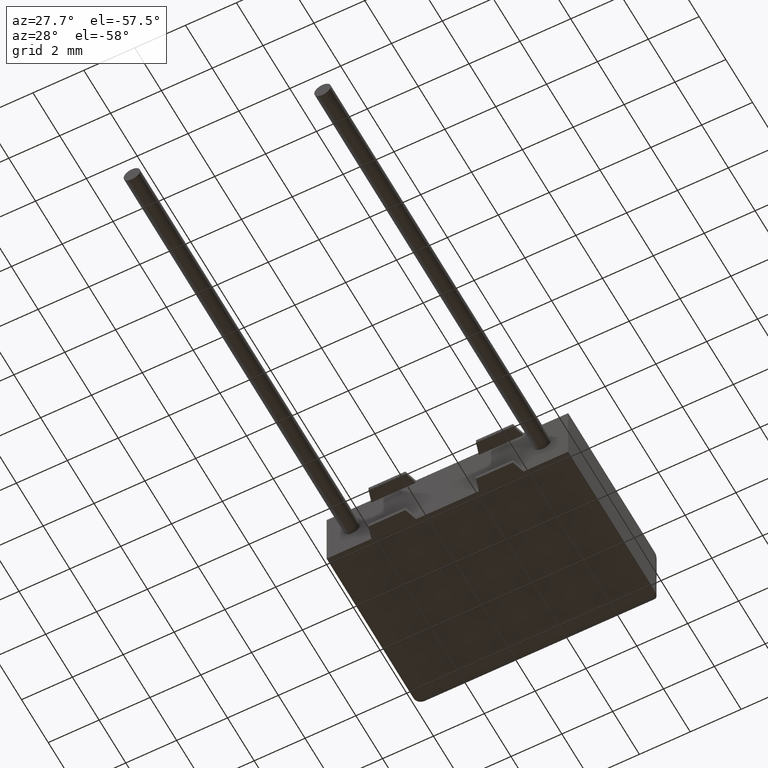
[diagram: clean part render]
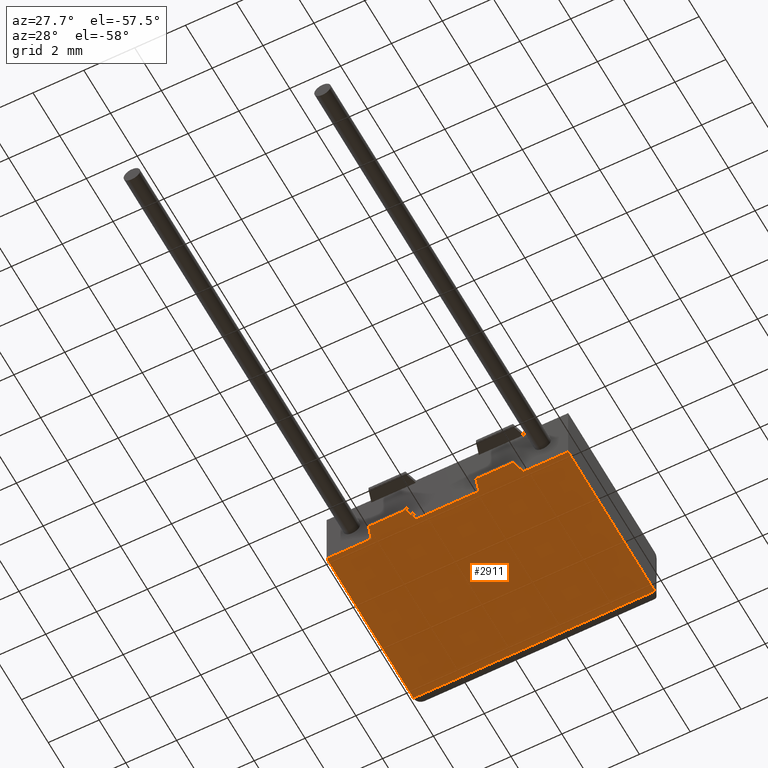
[diagram: same view with one face highlighted and labeled with its STEP entity id]
A machine part, auxiliary view. The second image highlights one B-rep face of the part: STEP entity #2911.
In plain terms, the highlighted planar face has unit normal (0, 0, -1).
Its self-contained STEP definition (entity closure, byte-faithful):
#9 = ORIENTED_EDGE ( 'NONE', *, *, #3180, .F. ) ;
#19 = ORIENTED_EDGE ( 'NONE', *, *, #1928, .T. ) ;
#23 = DIRECTION ( 'NONE',  ( -0.0000000000000000000, -1.000000000000000000, -0.0000000000000000000 ) ) ;
#136 = VERTEX_POINT ( 'NONE', #2211 ) ;
#140 = CARTESIAN_POINT ( 'NONE',  ( 7.589999999999999900, -0.4999999999999998900, 0.0000000000000000000 ) ) ;
#198 = DIRECTION ( 'NONE',  ( 0.2873478855663453300, -0.9578262852211513200, 0.0000000000000000000 ) ) ;
#204 = EDGE_CURVE ( 'NONE', #1562, #2958, #1283, .T. ) ;
#253 = CARTESIAN_POINT ( 'NONE',  ( 3.363500000000000200, -0.4999999999999997800, 0.0000000000000000000 ) ) ;
#281 = DIRECTION ( 'NONE',  ( 0.0000000000000000000, 1.000000000000000000, 0.0000000000000000000 ) ) ;
#356 = DIRECTION ( 'NONE',  ( -1.000000000000000000, 7.459251272690088700E-017, 0.0000000000000000000 ) ) ;
#376 = VECTOR ( 'NONE', #23, 1000.000000000000000 ) ;
#429 = LINE ( 'NONE', #1482, #3103 ) ;
#511 = EDGE_CURVE ( 'NONE', #1240, #1485, #1162, .T. ) ;
#512 = DIRECTION ( 'NONE',  ( 1.000000000000000000, 0.0000000000000000000, 0.0000000000000000000 ) ) ;
#602 = EDGE_CURVE ( 'NONE', #2728, #2152, #732, .T. ) ;
#732 = LINE ( 'NONE', #2421, #1393 ) ;
#744 = DIRECTION ( 'NONE',  ( 0.2873478855663453300, 0.9578262852211513200, 0.0000000000000000000 ) ) ;
#786 = EDGE_LOOP ( 'NONE', ( #1371, #2044, #2873, #9, #19, #1286, #2192, #823, #2032, #2327, #3225, #2199 ) ) ;
#818 = CARTESIAN_POINT ( 'NONE',  ( 9.500000000000000000, 0.0000000000000000000, 0.0000000000000000000 ) ) ;
#823 = ORIENTED_EDGE ( 'NONE', *, *, #602, .F. ) ;
#945 = VECTOR ( 'NONE', #198, 1000.000000000000200 ) ;
#970 = VERTEX_POINT ( 'NONE', #818 ) ;
#1035 = VECTOR ( 'NONE', #512, 1000.000000000000000 ) ;
#1043 = DIRECTION ( 'NONE',  ( 1.000000000000000000, -0.0000000000000000000, -0.0000000000000000000 ) ) ;
#1071 = CARTESIAN_POINT ( 'NONE',  ( 9.500000000000000000, 6.500000000000000900, 0.0000000000000000000 ) ) ;
#1116 = CARTESIAN_POINT ( 'NONE',  ( 1.909999999999999900, -0.4999999999999998900, 0.0000000000000000000 ) ) ;
#1161 = DIRECTION ( 'NONE',  ( 1.000000000000000000, 0.0000000000000000000, 0.0000000000000000000 ) ) ;
#1162 = LINE ( 'NONE', #1116, #2955 ) ;
#1166 = DIRECTION ( 'NONE',  ( 1.000000000000000000, 0.0000000000000000000, 0.0000000000000000000 ) ) ;
#1192 = DIRECTION ( 'NONE',  ( -0.2873478855663453300, 0.9578262852211513200, 0.0000000000000000000 ) ) ;
#1240 = VERTEX_POINT ( 'NONE', #2471 ) ;
#1283 = LINE ( 'NONE', #3047, #376 ) ;
#1286 = ORIENTED_EDGE ( 'NONE', *, *, #1614, .T. ) ;
#1327 = EDGE_CURVE ( 'NONE', #2958, #136, #3028, .T. ) ;
#1371 = ORIENTED_EDGE ( 'NONE', *, *, #204, .F. ) ;
#1393 = VECTOR ( 'NONE', #1166, 1000.000000000000000 ) ;
#1406 = CARTESIAN_POINT ( 'NONE',  ( 3.513500000000000100, 2.151398264402112600E-016, 0.0000000000000000000 ) ) ;
#1417 = CARTESIAN_POINT ( 'NONE',  ( 7.589999999999999900, -0.4999999999999998900, 0.0000000000000000000 ) ) ;
#1467 = CARTESIAN_POINT ( 'NONE',  ( 1.760000000000000000, 1.077689183249673200E-016, 0.0000000000000000000 ) ) ;
#1477 = DIRECTION ( 'NONE',  ( 0.0000000000000000000, 0.0000000000000000000, -1.000000000000000000 ) ) ;
#1482 = CARTESIAN_POINT ( 'NONE',  ( 7.739999999999999300, 1.077689183249673200E-016, 0.0000000000000000000 ) ) ;
#1485 = VERTEX_POINT ( 'NONE', #2055 ) ;
#1553 = VECTOR ( 'NONE', #356, 1000.000000000000000 ) ;
#1562 = VERTEX_POINT ( 'NONE', #2013 ) ;
#1614 = EDGE_CURVE ( 'NONE', #2132, #2905, #1670, .T. ) ;
#1670 = LINE ( 'NONE', #140, #1553 ) ;
#1681 = CARTESIAN_POINT ( 'NONE',  ( 0.0000000000000000000, 0.0000000000000000000, 0.0000000000000000000 ) ) ;
#1747 = CARTESIAN_POINT ( 'NONE',  ( 6.136499999999999800, -0.4999999999999997800, 0.0000000000000000000 ) ) ;
#1758 = PLANE ( 'NONE',  #2222 ) ;
#1928 = EDGE_CURVE ( 'NONE', #2431, #2132, #429, .T. ) ;
#2013 = CARTESIAN_POINT ( 'NONE',  ( 0.0000000000000000000, 6.500000000000000900, 0.0000000000000000000 ) ) ;
#2017 = CARTESIAN_POINT ( 'NONE',  ( 0.0000000000000000000, 0.0000000000000000000, 0.0000000000000000000 ) ) ;
#2021 = DIRECTION ( 'NONE',  ( -0.2873478855663453300, -0.9578262852211513200, 0.0000000000000000000 ) ) ;
#2032 = ORIENTED_EDGE ( 'NONE', *, *, #3082, .F. ) ;
#2044 = ORIENTED_EDGE ( 'NONE', *, *, #2252, .T. ) ;
#2055 = CARTESIAN_POINT ( 'NONE',  ( 3.363500000000000200, -0.4999999999999997800, 0.0000000000000000000 ) ) ;
#2132 = VERTEX_POINT ( 'NONE', #1417 ) ;
#2152 = VERTEX_POINT ( 'NONE', #3003 ) ;
#2184 = CARTESIAN_POINT ( 'NONE',  ( 6.136499999999999800, -0.4999999999999997800, 0.0000000000000000000 ) ) ;
#2192 = ORIENTED_EDGE ( 'NONE', *, *, #2764, .T. ) ;
#2199 = ORIENTED_EDGE ( 'NONE', *, *, #1327, .F. ) ;
#2211 = CARTESIAN_POINT ( 'NONE',  ( 1.760000000000000200, -2.710505431213761100E-017, 0.0000000000000000000 ) ) ;
#2222 = AXIS2_PLACEMENT_3D ( 'NONE', #3027, #1477, #3009 ) ;
#2252 = EDGE_CURVE ( 'NONE', #1562, #3046, #3248, .T. ) ;
#2327 = ORIENTED_EDGE ( 'NONE', *, *, #511, .F. ) ;
#2334 = VECTOR ( 'NONE', #281, 1000.000000000000000 ) ;
#2419 = LINE ( 'NONE', #253, #2974 ) ;
#2421 = CARTESIAN_POINT ( 'NONE',  ( 0.0000000000000000000, 0.0000000000000000000, 0.0000000000000000000 ) ) ;
#2431 = VERTEX_POINT ( 'NONE', #2789 ) ;
#2462 = VECTOR ( 'NONE', #1192, 1000.000000000000200 ) ;
#2471 = CARTESIAN_POINT ( 'NONE',  ( 1.909999999999999900, -0.4999999999999998900, 0.0000000000000000000 ) ) ;
#2581 = LINE ( 'NONE', #1467, #945 ) ;
#2728 = VERTEX_POINT ( 'NONE', #1406 ) ;
#2764 = EDGE_CURVE ( 'NONE', #2905, #2152, #3133, .T. ) ;
#2789 = CARTESIAN_POINT ( 'NONE',  ( 7.739999999999999300, 1.077689183249673200E-016, 0.0000000000000000000 ) ) ;
#2824 = VECTOR ( 'NONE', #1043, 1000.000000000000000 ) ;
#2864 = EDGE_CURVE ( 'NONE', #136, #1240, #2581, .T. ) ;
#2866 = VECTOR ( 'NONE', #1161, 1000.000000000000000 ) ;
#2873 = ORIENTED_EDGE ( 'NONE', *, *, #2951, .F. ) ;
#2884 = DIRECTION ( 'NONE',  ( 1.000000000000000000, 7.459251272690088700E-017, 0.0000000000000000000 ) ) ;
#2905 = VERTEX_POINT ( 'NONE', #1747 ) ;
#2911 = ADVANCED_FACE ( 'NONE', ( #2933 ), #1758, .T. ) ;
#2933 = FACE_OUTER_BOUND ( 'NONE', #786, .T. ) ;
#2935 = LINE ( 'NONE', #3015, #1035 ) ;
#2951 = EDGE_CURVE ( 'NONE', #970, #3046, #3130, .T. ) ;
#2955 = VECTOR ( 'NONE', #2884, 1000.000000000000000 ) ;
#2958 = VERTEX_POINT ( 'NONE', #2017 ) ;
#2974 = VECTOR ( 'NONE', #744, 1000.000000000000200 ) ;
#3003 = CARTESIAN_POINT ( 'NONE',  ( 5.986499999999999500, 0.0000000000000000000, 0.0000000000000000000 ) ) ;
#3009 = DIRECTION ( 'NONE',  ( -1.000000000000000000, 0.0000000000000000000, -0.0000000000000000000 ) ) ;
#3015 = CARTESIAN_POINT ( 'NONE',  ( 0.0000000000000000000, 0.0000000000000000000, 0.0000000000000000000 ) ) ;
#3027 = CARTESIAN_POINT ( 'NONE',  ( 0.0000000000000000000, 0.0000000000000000000, 0.0000000000000000000 ) ) ;
#3028 = LINE ( 'NONE', #1681, #2866 ) ;
#3046 = VERTEX_POINT ( 'NONE', #3127 ) ;
#3047 = CARTESIAN_POINT ( 'NONE',  ( 0.0000000000000000000, 0.0000000000000000000, 0.0000000000000000000 ) ) ;
#3053 = CARTESIAN_POINT ( 'NONE',  ( 9.500000000000000000, 0.0000000000000000000, 0.0000000000000000000 ) ) ;
#3082 = EDGE_CURVE ( 'NONE', #1485, #2728, #2419, .T. ) ;
#3103 = VECTOR ( 'NONE', #2021, 1000.000000000000200 ) ;
#3127 = CARTESIAN_POINT ( 'NONE',  ( 9.500000000000000000, 6.500000000000000900, 0.0000000000000000000 ) ) ;
#3130 = LINE ( 'NONE', #3053, #2334 ) ;
#3133 = LINE ( 'NONE', #2184, #2462 ) ;
#3180 = EDGE_CURVE ( 'NONE', #2431, #970, #2935, .T. ) ;
#3225 = ORIENTED_EDGE ( 'NONE', *, *, #2864, .F. ) ;
#3248 = LINE ( 'NONE', #1071, #2824 ) ;